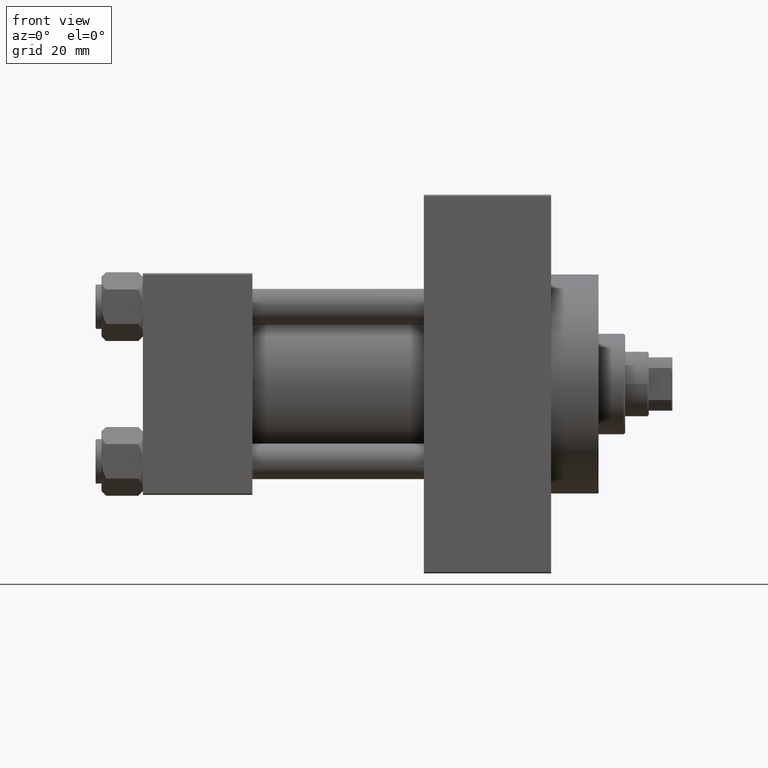
[diagram: clean part render]
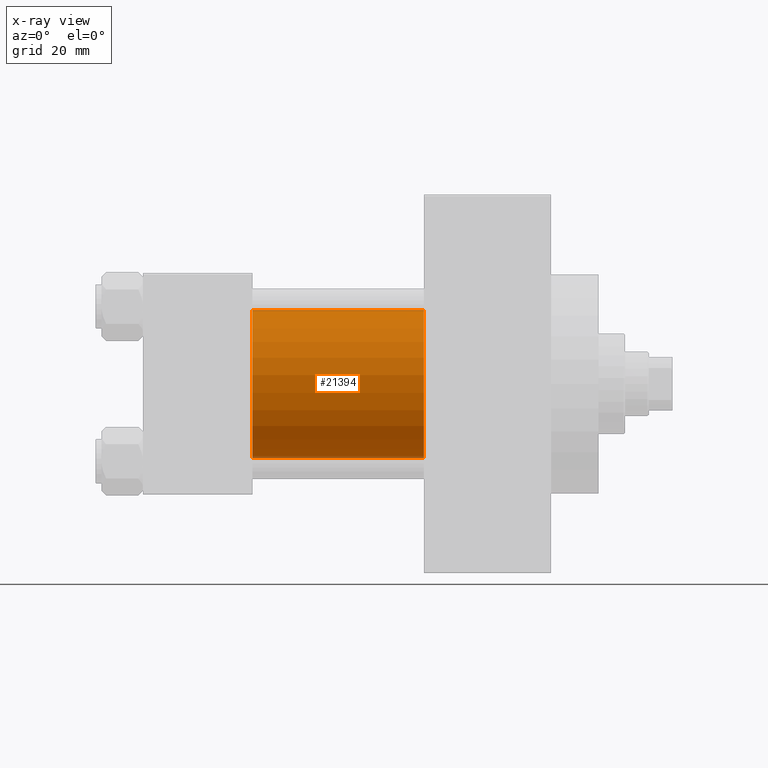
[diagram: x-ray — body ghosted, one internal face saturated and labeled with its STEP entity id]
A machine part, front view, then the same camera in x-ray: the body is ghosted and one INTERNAL B-rep face — a face not visible from any outside direction — is saturated and labeled: STEP entity #21394.
In plain terms, the highlighted cylindrical surface (partial cylindrical patch) has radius 25 mm, axis along (-1, -0, -0).
Its self-contained STEP definition (entity closure, byte-faithful):
#3325 = CARTESIAN_POINT ( 'NONE',  ( 95.00000000000000000, -2.602085213965210642E-15, 0.000000000000000000 ) ) ;
#3799 = DIRECTION ( 'NONE',  ( -1.000000000000000000, -0.000000000000000000, -0.000000000000000000 ) ) ;
#7776 = DIRECTION ( 'NONE',  ( -1.000000000000000000, -0.000000000000000000, -0.000000000000000000 ) ) ;
#8102 = EDGE_CURVE ( 'NONE', #34019, #37415, #14738, .T. ) ;
#8997 = DIRECTION ( 'NONE',  ( 0.000000000000000000, 0.000000000000000000, -1.000000000000000000 ) ) ;
#9280 = DIRECTION ( 'NONE',  ( 1.000000000000000000, 0.000000000000000000, 0.000000000000000000 ) ) ;
#11339 = DIRECTION ( 'NONE',  ( -1.000000000000000000, -0.000000000000000000, -0.000000000000000000 ) ) ;
#12190 = VERTEX_POINT ( 'NONE', #20493 ) ;
#12534 = CARTESIAN_POINT ( 'NONE',  ( 37.00000000000000000, -2.602085213965210642E-15, 25.00000000000000000 ) ) ;
#12698 = CARTESIAN_POINT ( 'NONE',  ( 95.00000000000000000, -2.602085213965210642E-15, 0.000000000000000000 ) ) ;
#13555 = EDGE_LOOP ( 'NONE', ( #13674, #25542, #42356, #19382 ) ) ;
#13674 = ORIENTED_EDGE ( 'NONE', *, *, #13727, .T. ) ;
#13727 = EDGE_CURVE ( 'NONE', #46022, #12190, #18717, .T. ) ;
#14738 = CIRCLE ( 'NONE', #38495, 25.00000000000000000 ) ;
#15058 = LINE ( 'NONE', #33869, #33417 ) ;
#18717 = CIRCLE ( 'NONE', #36114, 25.00000000000000000 ) ;
#19382 = ORIENTED_EDGE ( 'NONE', *, *, #32023, .F. ) ;
#20493 = CARTESIAN_POINT ( 'NONE',  ( 95.00000000000000000, 4.595317839031718093E-16, -25.00000000000000000 ) ) ;
#21394 = ADVANCED_FACE ( 'NONE', ( #26105 ), #37977, .F. ) ;
#24129 = CARTESIAN_POINT ( 'NONE',  ( 37.00000000000000000, -2.602085213965210642E-15, 0.000000000000000000 ) ) ;
#24243 = EDGE_CURVE ( 'NONE', #12190, #37415, #33996, .T. ) ;
#25542 = ORIENTED_EDGE ( 'NONE', *, *, #24243, .T. ) ;
#26105 = FACE_OUTER_BOUND ( 'NONE', #13555, .T. ) ;
#28047 = DIRECTION ( 'NONE',  ( 1.000000000000000000, 0.000000000000000000, 0.000000000000000000 ) ) ;
#28448 = VECTOR ( 'NONE', #3799, 1000.000000000000000 ) ;
#32023 = EDGE_CURVE ( 'NONE', #46022, #34019, #15058, .T. ) ;
#33162 = CARTESIAN_POINT ( 'NONE',  ( 95.00000000000000000, -2.602085213965210642E-15, 25.00000000000000000 ) ) ;
#33417 = VECTOR ( 'NONE', #11339, 1000.000000000000000 ) ;
#33869 = CARTESIAN_POINT ( 'NONE',  ( 95.00000000000000000, -2.602085213965210642E-15, 25.00000000000000000 ) ) ;
#33996 = LINE ( 'NONE', #41662, #28448 ) ;
#34019 = VERTEX_POINT ( 'NONE', #12534 ) ;
#35264 = DIRECTION ( 'NONE',  ( 0.000000000000000000, 0.000000000000000000, -1.000000000000000000 ) ) ;
#36114 = AXIS2_PLACEMENT_3D ( 'NONE', #12698, #28047, #8997 ) ;
#37415 = VERTEX_POINT ( 'NONE', #47528 ) ;
#37977 = CYLINDRICAL_SURFACE ( 'NONE', #46506, 25.00000000000000000 ) ;
#38495 = AXIS2_PLACEMENT_3D ( 'NONE', #24129, #9280, #35264 ) ;
#41662 = CARTESIAN_POINT ( 'NONE',  ( 95.00000000000000000, 4.595317839031718093E-16, -25.00000000000000000 ) ) ;
#42356 = ORIENTED_EDGE ( 'NONE', *, *, #8102, .F. ) ;
#46022 = VERTEX_POINT ( 'NONE', #33162 ) ;
#46506 = AXIS2_PLACEMENT_3D ( 'NONE', #3325, #7776, #48391 ) ;
#47528 = CARTESIAN_POINT ( 'NONE',  ( 37.00000000000000000, 4.595317839031718093E-16, -25.00000000000000000 ) ) ;
#48391 = DIRECTION ( 'NONE',  ( 0.000000000000000000, 0.000000000000000000, 1.000000000000000000 ) ) ;